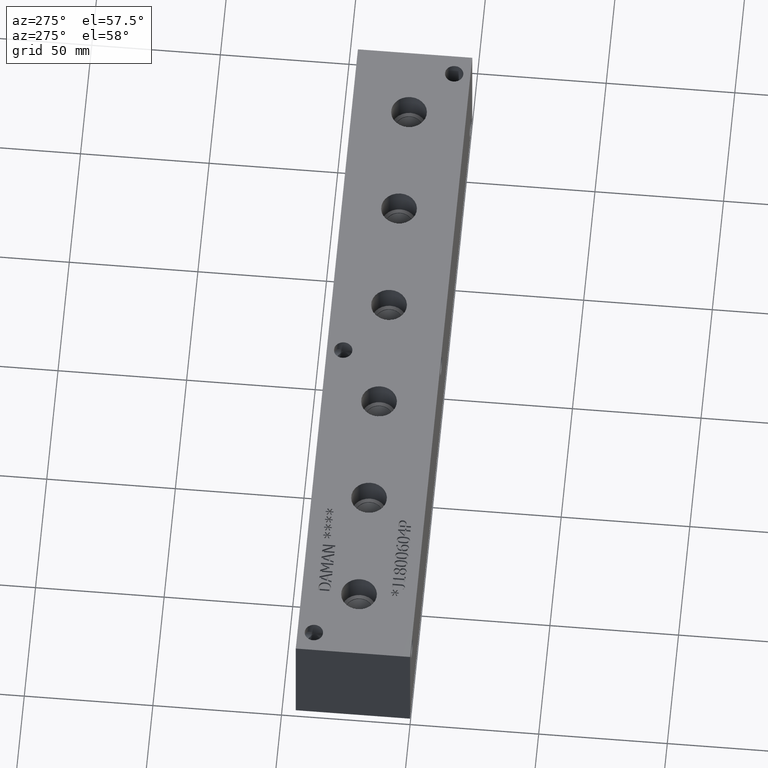
[diagram: clean part render]
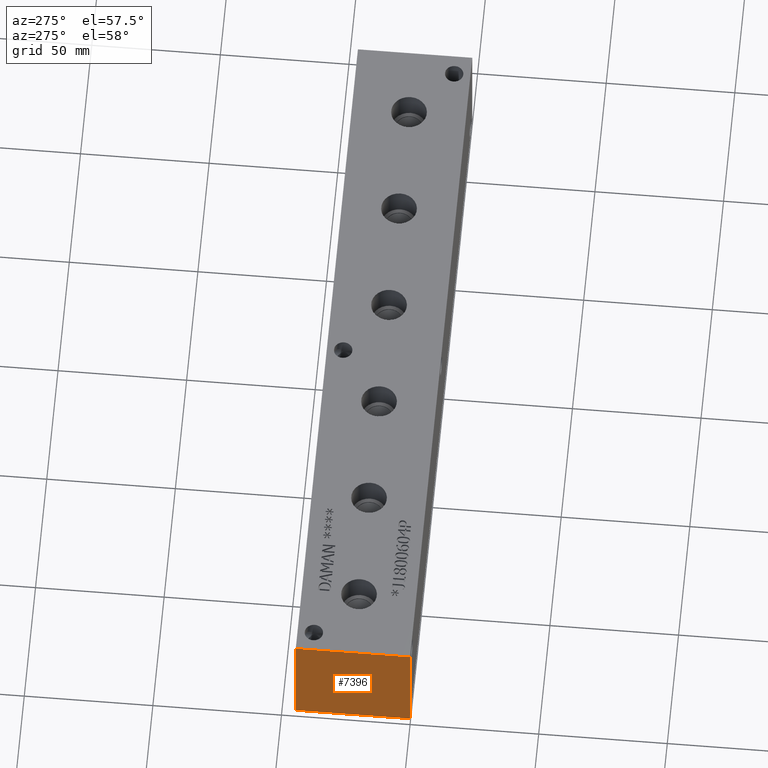
[diagram: same view with one face highlighted and labeled with its STEP entity id]
A machine part, auxiliary view. The second image highlights one B-rep face of the part: STEP entity #7396.
In plain terms, the highlighted planar face has unit normal (-1, 0, 0).
Its self-contained STEP definition (entity closure, byte-faithful):
#468=PLANE('',#7804);
#844=FACE_OUTER_BOUND('',#1271,.T.);
#1271=EDGE_LOOP('',(#6583,#6584,#6585,#6586));
#1566=LINE('',#11365,#2274);
#1992=LINE('',#12620,#2700);
#1993=LINE('',#12621,#2701);
#1994=LINE('',#12622,#2702);
#2274=VECTOR('',#8230,10.);
#2700=VECTOR('',#9290,10.);
#2701=VECTOR('',#9291,10.);
#2702=VECTOR('',#9292,10.);
#3198=VERTEX_POINT('',#11358);
#3201=VERTEX_POINT('',#11363);
#3584=VERTEX_POINT('',#12618);
#3585=VERTEX_POINT('',#12619);
#4038=EDGE_CURVE('',#3201,#3198,#1566,.T.);
#4594=EDGE_CURVE('',#3584,#3585,#1992,.T.);
#4595=EDGE_CURVE('',#3585,#3198,#1993,.T.);
#4596=EDGE_CURVE('',#3584,#3201,#1994,.T.);
#6583=ORIENTED_EDGE('',*,*,#4594,.T.);
#6584=ORIENTED_EDGE('',*,*,#4595,.T.);
#6585=ORIENTED_EDGE('',*,*,#4038,.F.);
#6586=ORIENTED_EDGE('',*,*,#4596,.F.);
#7396=ADVANCED_FACE('',(#844),#468,.T.);
#7804=AXIS2_PLACEMENT_3D('',#12617,#9288,#9289);
#8230=DIRECTION('',(0.,-1.,0.));
#9288=DIRECTION('center_axis',(-1.,0.,0.));
#9289=DIRECTION('ref_axis',(0.,-1.,0.));
#9290=DIRECTION('',(0.,-1.,0.));
#9291=DIRECTION('',(0.,0.,1.));
#9292=DIRECTION('',(0.,0.,1.));
#11358=CARTESIAN_POINT('',(0.,0.,44.45));
#11363=CARTESIAN_POINT('',(0.,44.45,44.45));
#11365=CARTESIAN_POINT('',(0.,44.45,44.45));
#12617=CARTESIAN_POINT('Origin',(0.,44.45,0.));
#12618=CARTESIAN_POINT('',(0.,44.45,0.));
#12619=CARTESIAN_POINT('',(0.,0.,0.));
#12620=CARTESIAN_POINT('',(0.,44.45,0.));
#12621=CARTESIAN_POINT('',(0.,0.,0.));
#12622=CARTESIAN_POINT('',(0.,44.45,0.));